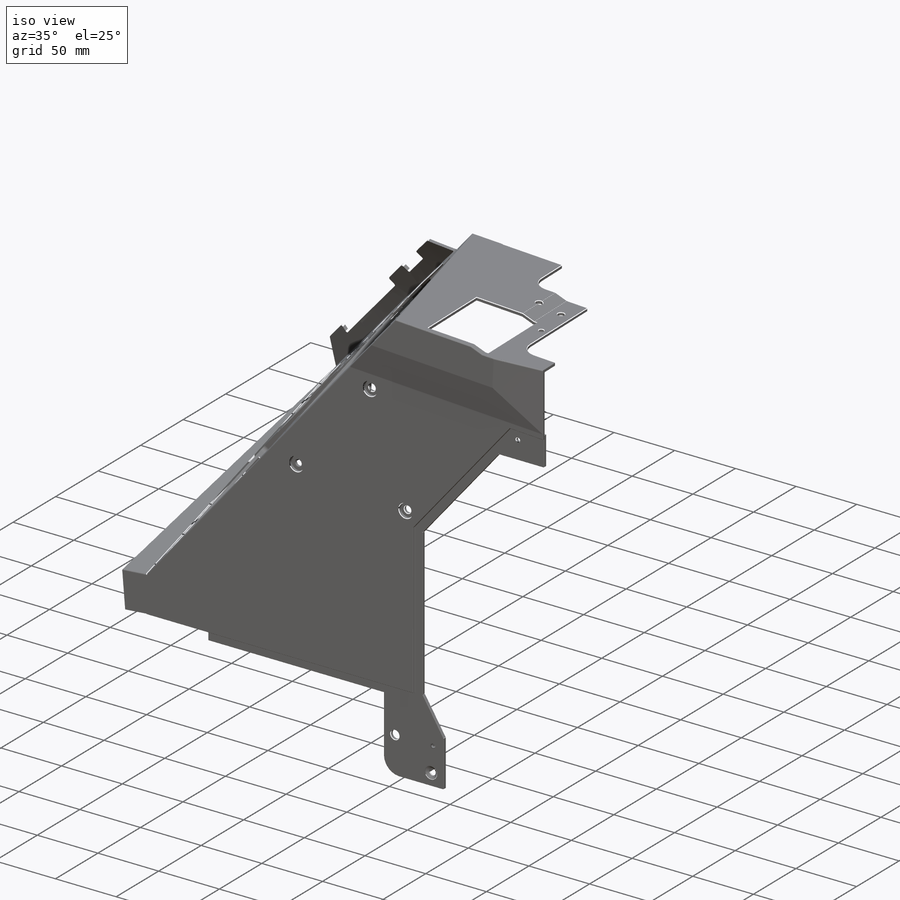
[diagram: iso view]
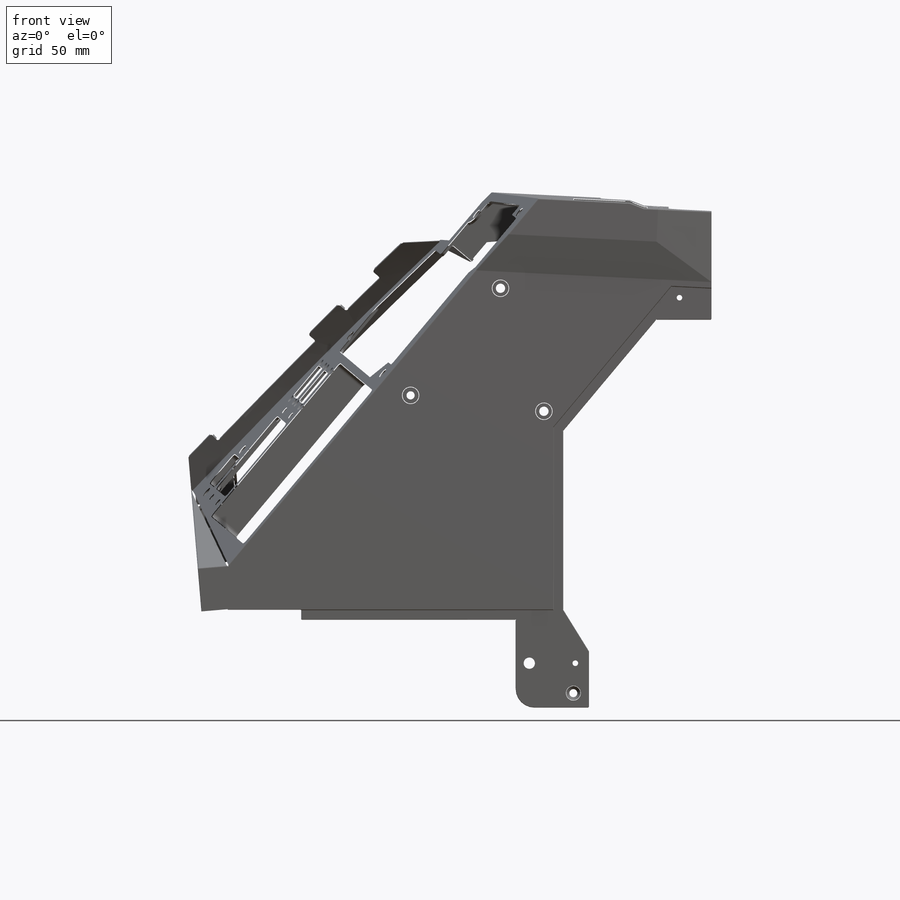
[diagram: front view]
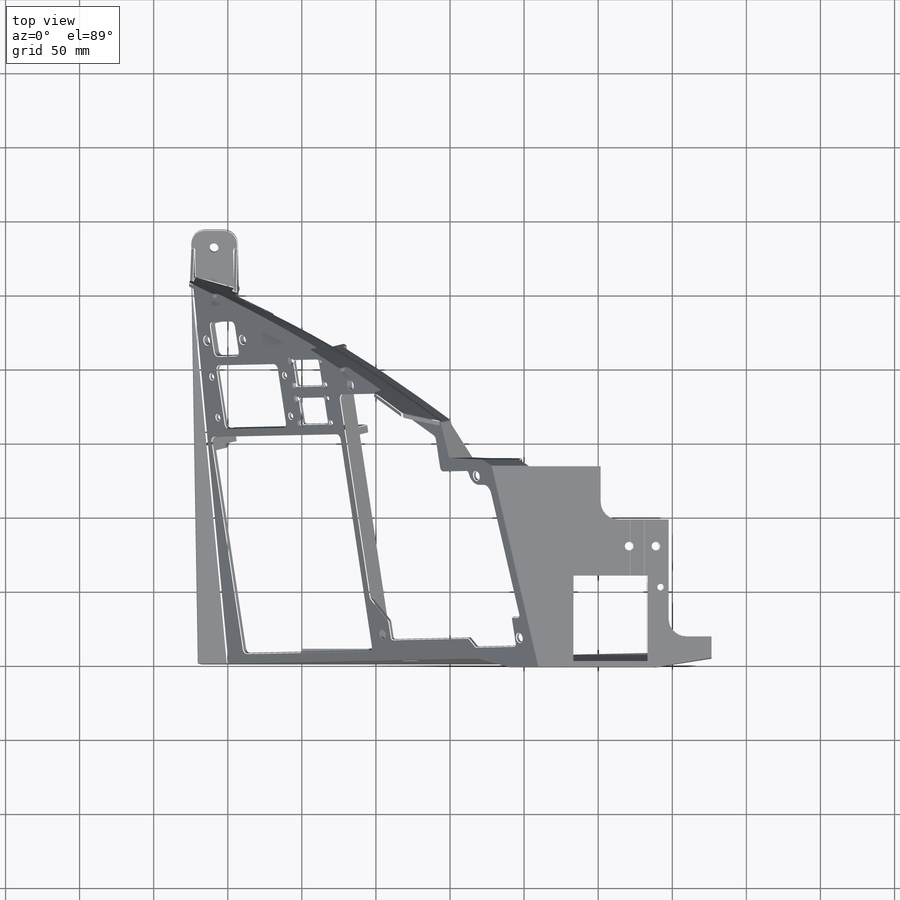
[diagram: top view]
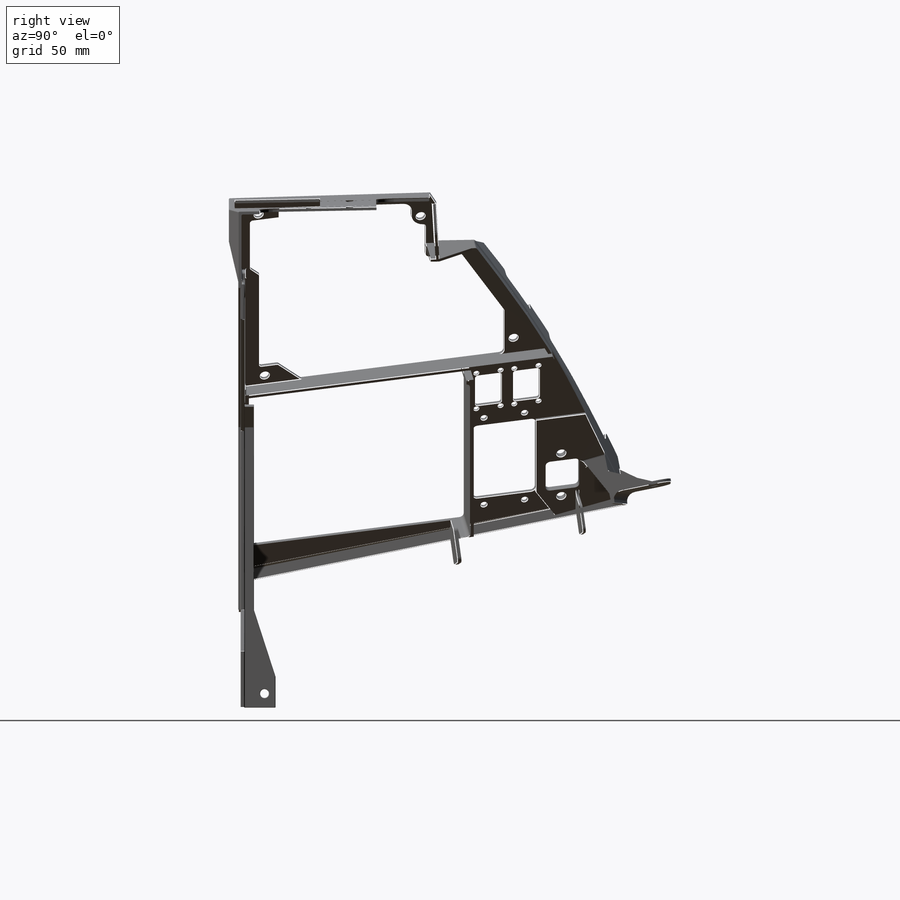
[diagram: right view]
SOLIDWORKS PART (.sldprt)
format: sldprt  version: not decoded by parser v0  size: 5,753,344 bytes
history: native  units: mm
features: sketch x102, fillet x74, cut_extrude x42, extrude x39, plane x13, hole x2, material x1, shell x1, chamfer x1 (+15 scaffold rows collapsed)
feature tree (290):
  scaffold x15  (default folders/planes/origin — collapsed)
  material  "6061-T6 (SS)"
  sketch  "Side Wall Main Sketch"  dims[c1.D6=248.0056mm c1.D9=~326.152942mm c1.D3=220.0656mm c1.D5=248.0056mm c2.D9=248.0056mm c2.D1=219.71mm c2.D2=123.2662mm c2.D3=219.71mm c3.D3=~53.003222deg c4.D3=278.7142mm c4.D4=~98.136797mm c5.D4=217.85deg c6.D4=~98.136797mm c7.D4=127.85deg c7.D5=~98.136797mm c8.D5=~0.853222deg c8.D4=219.71mm c9.D4=~53.025815deg c9.D5=~348.869578mm c10.D5=127.05deg c11.D5=54.4957mm c11.D6=~132.816224mm c11.D7=~128.734846mm c11.D8=9.8806mm c11.D4=11.6586mm c12.D8=219.71mm c13.D8=~53.095865deg c13.D9=219.71mm c14.D9=~49.936569deg c15.D9=219.71mm c16.D9=~49.738699deg c17.D9=~276.976558mm c17.D10=~116.255823mm c17.D5=~247.131558mm c18.D9=~247.131558mm c19.D9=~0.889566deg c20.D9=~277.172266mm c20.D3=~247.131558mm c21.D3=~0.331572deg c22.D3=~201.582295mm c23.D3=126.95deg c23.D9=~201.582295mm c24.D9=~3.161301deg c25.D9=118.4656mm c25.D10=124.0028mm c26.D10=~50.070271deg c27.D10=209.296mm c28.D10=~49.738699deg c29.D10=219.71mm c30.D10=~49.907149deg c31.D10=~332.755274mm c32.D10=50.0deg c32.D11=~278.126653mm c32.D3=118.4656mm c32.D4=118.4656mm c33.D4=127.15deg c33.D5=~11.543233mm c33.D9=219.71mm c34.D9=184.8deg c34.D11=20.32mm c34.D12=~248.083493mm c35.D12=134.0deg c35.D3=9.8806mm c35.D4=79.883mm c35.D5=54.4957mm c35.D7=79.5909mm c35.D8=29.845mm]
  sketch  "Sketch2"  dims[D1=0.0mm]
  extrude  "Extrude1"  Depth=2.5908mm
  plane  "Plane2"
  sketch  "Main Surface Tilt Angle Sketch"  dims[c1.D1=~78.558418mm c2.D1=11.15deg]
  plane  "Main Surface Extrusion Plane"
  sketch  "Sketch15"  dims[D1=2.5908mm]
  extrude  "Extrude8"  Depth=265.6078mm
  sketch  "Lower Surface Tilt Angle Sketch"  dims[c1.D1=~48.971068mm c2.D1=11.45deg]
  plane  "Plane5"
  sketch  "Sketch22"  dims[D1=2.5908mm]
  extrude  "Extrude10"  [1 undecoded]
  sketch  "Sketch25"
  cut_extrude  "Extrude15"  [1 undecoded]
  sketch  "Sketch26"  dims[D1=0.0mm]
  cut_extrude  "Extrude16"  [1 undecoded]
  sketch  "Sketch27"  dims[D1=0.0mm]
  cut_extrude  "Extrude17"  [1 undecoded]
  sketch  "Sketch29"  dims[D1=0.0mm]
  cut_extrude  "Extrude19"  [1 undecoded]
  sketch  "Main Surface Sketch"  dims[c1.D7=18.415mm c1.D9=16.51mm c1.D10=42.926mm c1.D21=38.1mm c1.D23=128.0795mm c1.D24=54.1655mm c1.D22=93.345mm c2.D24=24.13mm c2.D25=47.4345mm c2.D29=12.7mm c2.D30=34.7853mm c2.D19=14.097mm c3.D29=~63.074224mm c4.D29=2.5deg c4.D32=24.13mm c5.D32=8.0deg c5.D33=9.525mm c5.D34=11.3919mm c5.D1=6.731mm c5.D2=148.2725mm c5.D3=5.9944mm c5.D4=42.926mm c5.D5=6.6294mm c5.D6=23.1775mm c5.D8=134.7343mm c5.D9=16.51mm c5.D10=63.5mm c5.D11=25.4mm c5.D12=7.747mm c5.D13=17.907mm c5.D14=26.2128mm c5.D15=17.6784mm c5.D16=8.3947mm c5.D17=17.6784mm c5.D18=6.2865mm c5.D19=14.097mm c5.D20=168.148mm c5.D22=93.345mm c5.D23=128.0795mm c5.D26=7.8867mm c5.D27=8.6741mm c5.D28=15.6972mm c5.D29=12.7mm c5.D30=28.575mm c5.D31=96.52mm c6.D20=19.7739mm c6.D29=9.525mm]
  plane  "Plane Normal to Side Wall for Main Surface Cut"
  sketch  "Main Surface Cut Grid"  dims[c1.D1=273.558mm c1.D2=~260.594262mm c2.D1=259.5118mm c2.D2=252.0569mm c2.D3=242.5573mm c2.D4=232.9942mm c2.D5=223.1898mm c2.D6=213.3346mm c2.D7=201.6252mm c2.D8=~189.79642mm c2.D9=176.7205mm c2.D10=163.2458mm c2.D11=159.5628mm]
  sketch  "Sketch31"
  cut_extrude  "Main Surface Top Cut"  [1 undecoded]
  plane  "Top Surface Plane"
  sketch  "Sketch33"
  extrude  "Extrude21"  Depth=2.5908mm
  sketch  "Sketch58"  dims[D1=25.4mm]
  cut_extrude  "Main Surface Cut"  [1 undecoded]
  sketch  "Main Surface Grid"  dims[D1=2.794mm]
  plane  "Top Bump Plane"  Offset=6.35mm
  sketch  "Sketch34"  dims[c1.D1=25.4mm c1.D2=63.5mm c1.D3=3.175mm c1.D4=9.525mm c2.D3=9.525mm]
  sketch  "Sketch36"  dims[D1=50.8mm]
  sketch  "Sketch37"  dims[D1=0.0mm]
  extrude  "Extend the Bump to the main surface"  [1 undecoded]
  sketch  "Sketch40"  dims[D1=0.0mm]
  cut_extrude  "Fix the corner of the bump"  [1 undecoded]
  sketch  "Sketch41"  dims[D1=0.0mm]
  cut_extrude  "Top surface cut of rest"  [1 undecoded]
  shell  "Shelling the Bump"  Thickness=2.5908mm
  sketch  "Sketch42"
  extrude  "Fill in the top surface of rest"  [1 undecoded]
  sketch  "Sketch44"  dims[D1=2.54mm]
  cut_extrude  "Shave off the top surface to flat one piece"  [1 undecoded]
  sketch  "Sketch45"  dims[D1=2.54mm]
  cut_extrude  "Shave off the top surface flat for rest"  [1 undecoded]
  sketch  "Sketch46"  dims[D1=4.2672mm D2=24.0284mm D3=49.4411mm D4=56.8198mm]
  cut_extrude  "Top Surface Cablethrough hole cut"  [1 undecoded]
  sketch  "Sketch47"  dims[c1.D1=6.35mm c1.D2=8.382mm c2.D1=3.7084mm c2.D2=8.382mm]
  cut_extrude  "Top left corner Trim of top of the main surface & top surface"  [1 undecoded]
  sketch  "Sketch48"
  cut_extrude  "Top left trim of correct alignment"  [1 undecoded]
  sketch  "Sketch49"  dims[D1=2.5908mm]
  extrude  "Top left corner tab extrusion"  Depth=25.4mm
  sketch  "Sketch50"  dims[D1=2.54mm]
  cut_extrude  "Shave off of top left corner tab"  [1 undecoded]
  sketch  "Sketch51"  dims[c1.D1=~27.526438mm c2.D1=45.0deg]
  extrude  "Top left corner Tab extrusion  part 2"  [1 undecoded]
  fillet  "Fillet1"  Radius=6.35mm
  sketch  "Sketch54"  dims[c1.D2=14.6939mm c1.D1=38.5064mm c1.D3=28.575mm c1.D4=99.8982mm c2.D1=46.101mm]
  cut_extrude  "Extrude40"  [1 undecoded]
  fillet  "Fillet2"  Radius=11.5mm
  plane  "Plane7"
  sketch  "Sketch59"  dims[D1=2.5908mm]
  extrude  "Lower End Lip"  Depth=10.16mm
  sketch  "Sketch60"  dims[c1.D2=31.75mm c1.D3=31.75mm c2.D3=~188.661951deg c2.D1=2.5908mm]
  extrude  "Extrude43"  Depth=31.75mm
  fillet  "Fillet3"  Radius=9.525mm
  sketch  "Sketch61"  dims[D1=19.05mm D2=12.7mm]
  extrude  "Extrude44"  Depth=2.5908mm
  sketch  "Sketch71"  dims[D1=2.5908mm]
  extrude  "Extrude56"  [1 undecoded]
  sketch  "Sketch69"  dims[D1=0.0mm]
  extrude  "Extrude57"  [1 undecoded]
  sketch  "Sketch62"  dims[D1=0.0mm D2=12.7mm]
  extrude  "Extrude54"  Depth=2.5908mm
  plane  "Lower Tab Plane"  Offset=1.5748mm
  sketch  "Sketch72"  dims[c1.D3=22.5806mm c1.D4=3.3909mm c1.D1=6.731mm c1.D2=9.0678mm c2.D4=2.5908mm c2.D5=167.7416mm c2.D6=25.4mm c2.D7=49.4538mm c2.D8=66.04mm c2.D9=38.1mm]
  extrude  "Extrude58"  Depth=2.5908mm
  fillet  "Fillet4"  Radius=12.7mm
  sketch  "Sketch73"  dims[D2=19.05mm D1=2.5908mm]
  extrude  "Extrude59"  Depth=6.35mm
  sketch  "Sketch75"  dims[D1=20.955mm D2=20.955mm]
  extrude  "Extrude60"  [1 undecoded]
  sketch  "Sketch76"  dims[c1.D3=6.1468mm c1.D8=6.1468mm c1.D11=6.1468mm c1.D14=6.1468mm c1.D12=12.7mm c1.D1=5.08mm c1.D2=5.588mm c1.D4=18.415mm c1.D5=9.7028mm c2.D4=18.415mm c2.D6=10.795mm c2.D7=6.5278mm c2.D9=12.7mm c2.D10=6.604mm c2.D12=8.4328mm c2.D13=3.6322mm]
  cut_extrude  "Landing Gear Cutout"  [1 undecoded]
  sketch  "Sketch77"  dims[D1=2.8448mm]
  extrude  "Extrude62"  Depth=12.7mm
  sketch  "Sketch82"  dims[D1=0.0mm]
  extrude  "Extrude65"  [1 undecoded]
  sketch  "Sketch79"  dims[D3=5.4991mm D7=5.4991mm D8=5.4991mm D1=6.35mm D2=133.985mm D4=20.701mm D5=144.7038mm D6=216.9922mm]
  cut_extrude  "Side Wall 3 screws holes"  [1 undecoded]
  sketch  "Sketch80"  dims[D1=~2.71145mm D2=~2.71145mm D3=~2.71145mm]
  cut_extrude  "Side Wall 3 Screws Recess"  Depth=2.4384mm
  sketch  "Sketch81"  dims[c1.D1=19.685mm c1.D3=19.685mm c1.D4=19.685mm c1.D5=19.685mm c1.D6=~12.66817mm c2.D6=135.0deg c2.D7=6.35mm c2.D8=25.4mm c2.D1=2.5654mm c2.D2=2.5654mm c2.D3=4.8387mm c2.D4=4.8387mm c2.D5=4.8387mm c3.D2=5.1308mm c3.D1=2.5654mm c3.D4=5.1308mm]
  extrude  "Extrude66"  Depth=2.4384mm
  sketch  "Sketch83"
  cut_extrude  "Side Wall 3 Screw holes again"  [1 undecoded]
  fillet  "Fillet5"  Radius=1.5875mm
  sketch  "Sketch84"  dims[D1=0.0mm D2=0.0mm]
  extrude  "Extrude68"  [1 undecoded]
  fillet  "Fillet6"  Radius=1.5875mm
  fillet  "Fillet8"  Radius=0.79375mm
  sketch  "Sketch85"  dims[c1.D1=9.8425mm c1.D2=14.224mm c1.D4=14.224mm c2.D1=39.37mm c2.D3=9.017mm c2.D5=10.922mm]
  cut_extrude  "Extrude69"  Depth=1.27mm
  chamfer  "Chamfer1"  Distance=1.27mm Angle=45deg
  sketch  "Sketch89"  dims[D1=5.1308mm]
  cut_extrude  "Extrude72"  [1 undecoded]
  fillet  "Fillet9"  Radius=6.35mm
  sketch  "Sketch99"  dims[D1=2.5908mm]
  cut_extrude  "Extrude93"  [1 undecoded]
  sketch  "Sketch101"  dims[D1=0.0mm]
  cut_extrude  "Extrude94"  [1 undecoded]
  sketch  "Sketch95"  dims[D1=2.5908mm]
  extrude  "Extrude90"  Depth=3.7465mm
  sketch  "Sketch97"  dims[D1=0.0mm]
  cut_extrude  "Extrude91"  [1 undecoded]
  sketch  "Sketch98"  dims[D1=2.5908mm]
  extrude  "Extrude92"  Depth=6.35mm
  fillet  "Fillet12"  Radius=1.5875mm
  sketch  "Sketch102"
  extrude  "Extrude97"  [1 undecoded]
  sketch  "Sketch104"
  extrude  "Extrude98"  [1 undecoded]
  fillet  "Fillet15"  Radius=1.5875mm
  sketch  "Sketch105"
  cut_extrude  "IFF Cutout"  [1 undecoded]
  sketch  "Sketch106"
  cut_extrude  "Speed Brake Cutout"  [1 undecoded]
  sketch  "Sketch107"
  cut_extrude  "Leading Edge Cutout"  [1 undecoded]
  hole  "SpeedBrake & Laeading Edge Screw Holes"  Diameter=3.2639mm Depth=2.5908mm
  sketch  "3DSketch6"  dims[c1.D1=0.508mm c1.D2=0.508mm c1.D3=0.508mm c1.D4=~0.982871mm c1.D16=0.508mm c1.D5=2.54mm c1.D6=2.54mm c1.D7=2.54mm c1.D8=2.54mm c1.D9=2.54mm c1.D10=2.54mm c1.D11=2.54mm c1.D12=2.54mm c1.D13=0.508mm c1.D14=0.508mm c1.D15=0.508mm c2.D16=~0.613284mm c2.D17=0.508mm]
  sketch  "Sketch156"  dims[hole-wizard template sketch: 55 standard entries collapsed; hole parameters kept: c17.Thru Hole Depth=2.5908mm c17.Near C'Sink Dia.=5.715mm c17.D4=~3.666174mm c17.Near C'Sink Angle=100.0deg]
  sketch  "Sketch108"  dims[D5=4.1148mm D6=4.1148mm D1=6.477mm D2=6.477mm D3=13.97mm D4=13.97mm]
  cut_extrude  "Thread Warning Aux Cutout"  [1 undecoded]
  sketch  "Sketch109"  dims[D4=6.1468mm D1=6.0706mm D2=6.0706mm D3=10.795mm]
  cut_extrude  "Emergency Landing Handle Cutout"  [1 undecoded]
  sketch  "Sketch110"  dims[D1=2.8956mm D2=2.8956mm]
  extrude  "Support Behind IFF"  Depth=20.1168mm
  sketch  "Sketch114"  dims[D1=0.0mm]
  cut_extrude  "Support Behind IFF cut"  [1 undecoded]
  sketch  "Sketch116"  dims[D1=12.4968mm D2=3.175mm]
  extrude  "Extrude106"  [1 undecoded]
  sketch  "3DSketch1"
  cut_extrude  "Extrude109"  [1 undecoded]
  sketch  "Sketch122"  dims[D1=17.526mm D2=19.05mm]
  extrude  "Buttom Right Tab"  Depth=3.175mm
  sketch  "Sketch123"  dims[D1=0.0mm]
  extrude  "Extrude113"  [1 undecoded]
  fillet  "Fillet16"  Radius=3.175mm
  sketch  "Sketch125"  dims[c1.D1=63.5mm c2.D1=30.0deg c3.D1=~20.554759mm c4.D1=30.0deg]
  extrude  "Support Thicken behind Emergency Landing Handle"  Depth=1.6764mm
  sketch  "Sketch126"  dims[D1=0.0mm]
  extrude  "Extrude122"  [1 undecoded]
  sketch  "Sketch128"  dims[D1=0.0mm]
  extrude  "Extrude124"  [1 undecoded]
  sketch  "Sketch129"
  extrude  "Extrude125"  Depth=26.289mm
  sketch  "Sketch130"  dims[D1=0.0mm]
  extrude  "Extrude127"  [1 undecoded]
  sketch  "Sketch133"
  extrude  "Extrude133"  Depth=2.5908mm
  fillet  "Fillet22"  Radius=1.5875mm
  sketch  "Sketch134"  dims[D1=2.5908mm D2=3.175mm]
  extrude  "Bottom Left Tab"  Depth=31.75mm
  sketch  "Sketch135"  dims[c1.D1=17.78mm c1.D3=17.78mm c2.D3=135.0deg c2.D2=19.05mm c2.D4=0.0mm]
  cut_extrude  "Bottom Left Tab Cut 1"  [1 undecoded]
  sketch  "Sketch137"
  cut_extrude  "Buttom Left Tab Cut 2"  [1 undecoded]
  fillet  "Fillet24"  Radius=3.175mm
  plane  "Plane Normal #0"
  plane  "Plane Normal Start"
  plane  "Plane Normal #4"  Offset=101.6mm
  plane  "Plane Normal #6"  Offset=152.4mm
  plane  "Plane Normal End"
  sketch  "Sketch #Start"  dims[c1.D1=~68.180558mm c2.D1=105.0deg c2.D2=17.4371mm c2.D3=17.4371mm]
  sketch  "Sketch #4"  dims[c1.D1=~25.21296mm c2.D1=100.65deg c2.D2=17.4371mm]
  sketch  "Sketch #6"  dims[c1.D1=~78.641063mm c2.D1=93.8deg c2.D2=17.4371mm]
  sketch  "Sketch #end"  dims[c1.D1=~9.17549mm c2.D1=86.0deg c2.D2=17.4371mm]
  sketch  "Sketch146"  dims[D1=2.794mm]
  sketch  "3DSketch3"
  sketch  "3DSketch4"
  sketch  "3DSketch5"
  sketch  "Sketch147"  dims[D1=2.794mm]
  sketch  "Sketch148"  dims[D1=0.0mm]
  extrude  "Extrude137"  [1 undecoded]
  sketch  "Sketch149"  dims[D1=25.4mm]
  cut_extrude  "Extrude138"  [1 undecoded]
  sketch  "Sketch152"  dims[c1.D1=~17.394624mm c2.D1=45.0deg]
  cut_extrude  "Extrude139"  [1 undecoded]
  sketch  "Sketch153"  dims[c1.D2=~17.520789mm c2.D2=90.0deg c2.D1=10.5664mm c3.D2=30.1244mm c3.D3=35.8521mm c3.D4=31.75mm c3.D5=100.8888mm]
  cut_extrude  "Extrude140"  [1 undecoded]
  sketch  "Sketch154"  dims[D1=0.0mm]
  extrude  "Extrude141"  [1 undecoded]
  sketch  "Sketch155"
  extrude  "Extrude142"  [1 undecoded]
  sketch  "Sketch157"
  cut_extrude  "Emergency Landing Handle Screw hole Cut out again... grr.."  [1 undecoded]
  sketch  "Sketch158"  dims[D4=4.9022mm D5=4.9022mm D8=3.5433mm D9=~67.378791mm D1=18.415mm D2=9.017mm D3=27.305mm D6=5.8674mm D7=46.101mm]
  cut_extrude  "Top Surface Screw Holes"  [1 undecoded]
  sketch  "Sketch160"  dims[D3=2.9464mm D1=7.4422mm D2=21.6408mm]
  cut_extrude  "Top Right Tab Screw Hole"  [1 undecoded]
  sketch  "Sketch161"  dims[D4=6.8326mm D5=3.0099mm D1=36.0426mm D2=9.1948mm D3=9.1948mm]
  cut_extrude  "Lower Right Tab Screw Holes"  [1 undecoded]
  hole  "Lower Right Tab Countersink Screw Hole"  Diameter=5.1054mm Depth=2.5908mm
  sketch  "3DSketch7"  dims[D1=10.541mm D2=9.7917mm]
  sketch  "Sketch162"  dims[hole-wizard template sketch: 55 standard entries collapsed; hole parameters kept: c17.Thru Hole Depth=2.5908mm c17.Near C'Sink Dia.=9.779mm c17.D4=~3.666174mm c17.Near C'Sink Angle=100.0deg]
  sketch  "Sketch163"  dims[D3=5.9436mm D1=9.525mm D2=7.4676mm]
  cut_extrude  "Lower Right Tab Back Side Screw Hole"  [1 undecoded]
  sketch  "Sketch164"  dims[D2=6.0833mm D1=12.192mm]
  cut_extrude  "Lower Left Tab Screw Hole"  [1 undecoded]
  fillet  "Fillet27"  Radius=9.525mm
  fillet  "Fillet28"  Radius=1.5875mm
  fillet  "Fillet29"  Radius=6.35mm
  fillet  "Fillet30"  Radius=3.175mm
  fillet  "Fillet31"  Radius=3.175mm
  fillet  "Fillet32"  Radius=1.5875mm
  fillet  "Fillet33"  Radius=3.175mm
  fillet  "Fillet36"  Radius=0.79375mm
  fillet  "Fillet37"  Radius=0.79375mm
  fillet  "Fillet38"  Radius=0.396875mm
  fillet  "Fillet39"  Radius=0.396875mm
  fillet  "Fillet40"  Radius=0.396875mm
  fillet  "Fillet41"  Radius=0.396875mm
  fillet  "Fillet42"  Radius=0.396875mm
  fillet  "Fillet43"  Radius=0.396875mm
  fillet  "Fillet44"  Radius=0.396875mm
  fillet  "Fillet45"  Radius=0.396875mm
  fillet  "Fillet46"  Radius=0.396875mm
  fillet  "Fillet47"  Radius=0.396875mm
  fillet  "Fillet49"  Radius=0.396875mm
  fillet  "Fillet53"  Radius=0.396875mm
  fillet  "Fillet54"  Radius=0.396875mm
  fillet  "Fillet55"  Radius=0.396875mm
  fillet  "Fillet56"  Radius=0.396875mm
  fillet  "Fillet57"  Radius=0.396875mm
  fillet  "Fillet58"  Radius=0.396875mm
  fillet  "Fillet59"  Radius=0.396875mm
  fillet  "Fillet60"  Radius=1.5875mm
  fillet  "Fillet61"  Radius=0.396875mm
  fillet  "Fillet64"  Radius=0.198437mm
  fillet  "Fillet66"  Radius=0.396875mm
  fillet  "Fillet67"  Radius=0.396875mm
  fillet  "Fillet68"  Radius=0.396875mm
  fillet  "Fillet69"  Radius=0.396875mm
  fillet  "Fillet70"  Radius=0.396875mm
  fillet  "Fillet71"  Radius=0.396875mm
  fillet  "Fillet72"  Radius=0.396875mm
  fillet  "Fillet73"  Radius=0.396875mm
  fillet  "Fillet74"  Radius=0.396875mm
  fillet  "Fillet76"  Radius=0.396875mm
  fillet  "Fillet77"  Radius=0.396875mm
  fillet  "Fillet78"  Radius=0.396875mm
  fillet  "Fillet79"  Radius=0.396875mm
  fillet  "Fillet80"  Radius=0.396875mm
  fillet  "Fillet81"  Radius=0.396875mm
  fillet  "Fillet82"  Radius=0.396875mm
  fillet  "Fillet83"  Radius=0.396875mm
  fillet  "Fillet84"  Radius=0.396875mm
  fillet  "Fillet85"  Radius=0.396875mm
  fillet  "Fillet86"  Radius=0.396875mm
  fillet  "Fillet88"  Radius=0.396875mm
  fillet  "Fillet89"  Radius=0.396875mm
  fillet  "Fillet90"  Radius=0.396875mm
  fillet  "Fillet91"  Radius=0.396875mm
  fillet  "Fillet92"  Radius=0.396875mm
  fillet  "Fillet93"  Radius=0.396875mm
  fillet  "Fillet94"  Radius=0.396875mm
  fillet  "Fillet95"  Radius=0.396875mm
  fillet  "Fillet97"  Radius=0.396875mm
  fillet  "Fillet98"  Radius=0.396875mm
  fillet  "Fillet99"  Radius=1.5875mm
decode coverage: 182 of 261 modeling features carry decoded parameters
note: ~ marks probable driven/reference dimensions
note: 59 parameter values undecoded
summary: no parameter record found for 59 features
note: suppression state not decoded; provenance and decode notes live in map.json
